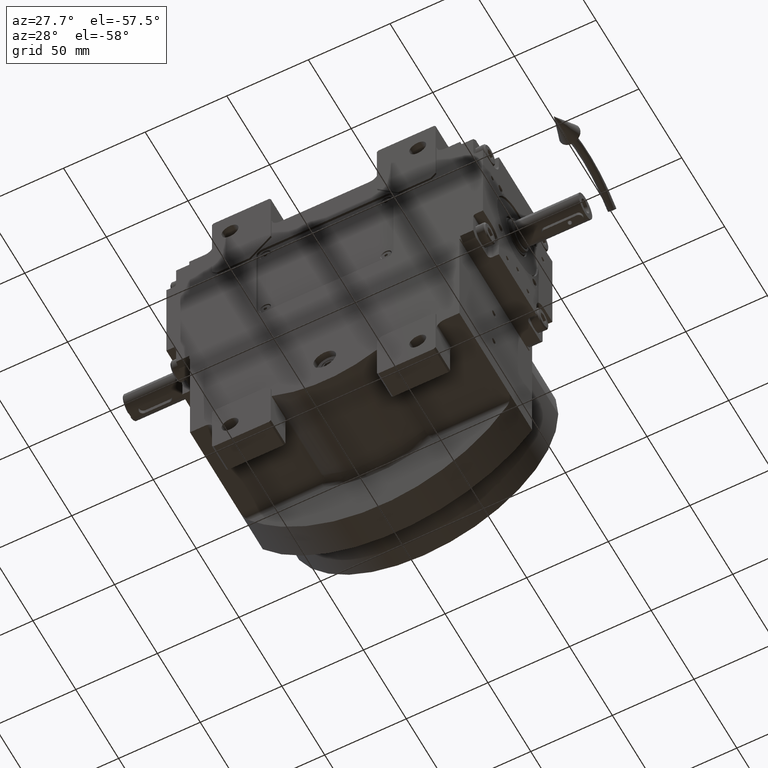
[diagram: clean part render]
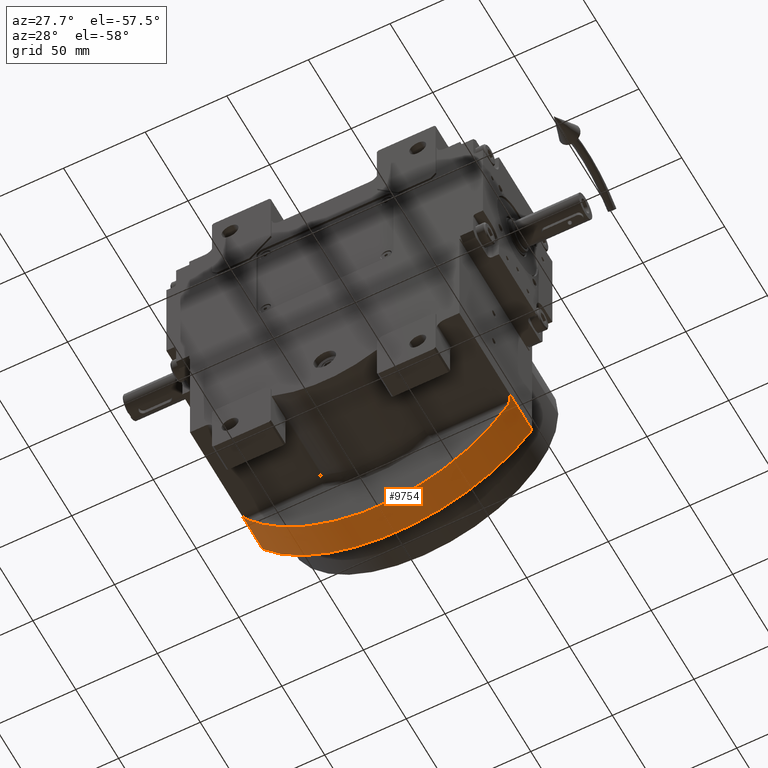
[diagram: same view with one face highlighted and labeled with its STEP entity id]
A machine part, auxiliary view. The second image highlights one B-rep face of the part: STEP entity #9754.
In plain terms, the highlighted cylindrical surface (partial cylindrical patch) has radius 101.323 mm, axis along (0, -1, 0).
Its self-contained STEP definition (entity closure, byte-faithful):
#421 = CARTESIAN_POINT ( 'NONE',  ( -80.71124185557013675, 21.21846151542565195, -60.93204789127204180 ) ) ;
#755 = CARTESIAN_POINT ( 'NONE',  ( 81.07808203326490570, 20.88843606383877471, -60.44566448122529323 ) ) ;
#1072 = CARTESIAN_POINT ( 'NONE',  ( 79.48504137600836827, 21.85553085867646672, -62.51814280813015756 ) ) ;
#1402 = CARTESIAN_POINT ( 'NONE',  ( 82.39740260651255710, 18.11699453785075065, -58.64364359043779018 ) ) ;
#2033 = CARTESIAN_POINT ( 'NONE',  ( 81.68887476796761860, 20.08202592194644254, -59.62156687700097990 ) ) ;
#2562 =( BOUNDED_CURVE ( )  B_SPLINE_CURVE ( 3, ( #35764, #30263, #25406, #60341 ),
 .UNSPECIFIED., .F., .F. ) 
 B_SPLINE_CURVE_WITH_KNOTS ( ( 4, 4 ),
 ( 2.246693557745409908, 4.036491749434144793 ),
 .UNSPECIFIED. ) 
 CURVE ( )  GEOMETRIC_REPRESENTATION_ITEM ( )  RATIONAL_B_SPLINE_CURVE ( ( 1.000000000000000000, 0.7503983596967388481, 0.7503983596967388481, 1.000000000000000000 ) ) 
 REPRESENTATION_ITEM ( '' )  );
#3765 = CARTESIAN_POINT ( 'NONE',  ( 0.000000000000000000, 44.50000000000000000, 0.3235294117646390077 ) ) ;
#5605 = CARTESIAN_POINT ( 'NONE',  ( 81.41555652887343797, 20.48138983581629446, -59.99201618544422843 ) ) ;
#5926 = CARTESIAN_POINT ( 'NONE',  ( 82.47216222466504121, 17.61681362791584959, -58.53908532207057647 ) ) ;
#6163 = EDGE_CURVE ( 'NONE', #40391, #55740, #24011, .T. ) ;
#6249 = CARTESIAN_POINT ( 'NONE',  ( 82.36648109135089157, 18.28109137298823939, -58.68684616786029551 ) ) ;
#6580 = CARTESIAN_POINT ( 'NONE',  ( 82.21217926006283960, 18.88176157855128423, -58.90159697903771274 ) ) ;
#6680 = VERTEX_POINT ( 'NONE', #54630 ) ;
#6733 = AXIS2_PLACEMENT_3D ( 'NONE', #3765, #48072, #56821 ) ;
#8053 = DIRECTION ( 'NONE',  ( 0.000000000000000000, -1.000000000000000000, 0.000000000000000000 ) ) ;
#8224 = CARTESIAN_POINT ( 'NONE',  ( -79.95003047960310028, 21.66726030743307874, -61.92194395876539659 ) ) ;
#9103 = ORIENTED_EDGE ( 'NONE', *, *, #32382, .T. ) ;
#9754 = ADVANCED_FACE ( 'NONE', ( #52673 ), #18054, .T. ) ;
#10771 = CARTESIAN_POINT ( 'NONE',  ( -82.15202258272368852, 19.06696433432636084, -58.98501332906405281 ) ) ;
#11104 = CARTESIAN_POINT ( 'NONE',  ( 81.55165246565790937, 20.29212583726973662, -59.80794136754331447 ) ) ;
#11943 = DIRECTION ( 'NONE',  ( 1.000000000000000000, 0.000000000000000000, 0.000000000000000000 ) ) ;
#14010 = CARTESIAN_POINT ( 'NONE',  ( -79.04714209825419857, 21.89931762037159757, -63.06422128626171286 ) ) ;
#14894 = CARTESIAN_POINT ( 'NONE',  ( -82.50000000000000000, 44.50000000000000000, -58.50000000000000000 ) ) ;
#15589 = CARTESIAN_POINT ( 'NONE',  ( -80.51481584605495812, 21.36195474809392891, -61.19021373771372652 ) ) ;
#15604 = CARTESIAN_POINT ( 'NONE',  ( 80.40883032657372098, 21.42125769504145794, -61.32774323446309239 ) ) ;
#16250 = CARTESIAN_POINT ( 'NONE',  ( 81.42711121235259952, 20.46597128035962854, -59.97641659382209411 ) ) ;
#18054 = CYLINDRICAL_SURFACE ( 'NONE', #21050, 101.3235294117646106 ) ;
#19617 = EDGE_CURVE ( 'NONE', #6680, #47337, #2562, .T. ) ;
#19836 = CARTESIAN_POINT ( 'NONE',  ( -79.04714209825419857, 21.89931762037159757, -63.06422128626171286 ) ) ;
#20133 = CARTESIAN_POINT ( 'NONE',  ( -82.39684885677273485, 18.29445221631914009, -58.64535851625800689 ) ) ;
#20450 = CARTESIAN_POINT ( 'NONE',  ( -82.17668361585674575, 18.99343862321323329, -58.95083879551732053 ) ) ;
#20453 = VECTOR ( 'NONE', #63127, 1000.000000000000000 ) ;
#21050 = AXIS2_PLACEMENT_3D ( 'NONE', #52356, #8053, #11943 ) ;
#21544 = CARTESIAN_POINT ( 'NONE',  ( 82.50000000000000000, 44.50000000000000000, -58.50000000000000000 ) ) ;
#21756 = CARTESIAN_POINT ( 'NONE',  ( 81.44827145435971261, 20.43735929856577727, -59.94783199448234967 ) ) ;
#24011 = LINE ( 'NONE', #43109, #32549 ) ;
#24352 = CARTESIAN_POINT ( 'NONE',  ( -82.49601985882750910, 17.62754433642036389, -58.50558214806272872 ) ) ;
#25329 = CARTESIAN_POINT ( 'NONE',  ( 81.24827234366316020, 20.70210223939763949, -60.21774392360881478 ) ) ;
#25406 = CARTESIAN_POINT ( 'NONE',  ( -35.11341279681530381, 26.69257427412653882, -117.8513955392394621 ) ) ;
#25633 = CARTESIAN_POINT ( 'NONE',  ( -80.27860717920268030, 21.49925890274865381, -61.49721705929056270 ) ) ;
#25651 = CARTESIAN_POINT ( 'NONE',  ( 82.28104955507662055, 18.64340514809044080, -58.80589567971785669 ) ) ;
#25755 = CARTESIAN_POINT ( 'NONE',  ( -82.50000000000000000, 44.50000000000000000, -58.50000000000000000 ) ) ;
#26298 = CARTESIAN_POINT ( 'NONE',  ( 80.80307844551603580, 21.13584355563558859, -60.81028530005812627 ) ) ;
#26617 = CARTESIAN_POINT ( 'NONE',  ( 82.31103723514804926, 18.52329142343325330, -58.76413230345031025 ) ) ;
#29465 = EDGE_CURVE ( 'NONE', #55740, #47998, #43887, .T. ) ;
#30186 = CARTESIAN_POINT ( 'NONE',  ( 82.10664358165148258, 19.21751729846226908, -59.04803310326353483 ) ) ;
#30263 = CARTESIAN_POINT ( 'NONE',  ( 35.11341279681546723, 26.69257427412652461, -117.8513955392394053 ) ) ;
#30491 = CARTESIAN_POINT ( 'NONE',  ( -82.18817833712013510, 18.95810624168983338, -58.93489948096387110 ) ) ;
#30591 = CARTESIAN_POINT ( 'NONE',  ( 82.50000025238179546, 16.91834884610074852, -58.49999999999619860 ) ) ;
#30819 = CARTESIAN_POINT ( 'NONE',  ( 80.48570218483004624, 21.37244370281862516, -61.22743844595007801 ) ) ;
#31462 = CARTESIAN_POINT ( 'NONE',  ( 82.24764895165553469, 18.76203942189971130, -58.85232920322380323 ) ) ;
#32382 = EDGE_CURVE ( 'NONE', #40391, #6680, #35999, .T. ) ;
#32549 = VECTOR ( 'NONE', #43747, 1000.000000000000000 ) ;
#32788 = CARTESIAN_POINT ( 'NONE',  ( -79.58728390821065091, 21.80910175760159930, -62.38629793861768746 ) ) ;
#34689 = CARTESIAN_POINT ( 'NONE',  ( -81.26507269813426149, 20.67153175727413839, -60.19468085035670413 ) ) ;
#35019 = CARTESIAN_POINT ( 'NONE',  ( -81.72912275488519640, 20.02336032153224465, -59.56685795275570428 ) ) ;
#35350 = CARTESIAN_POINT ( 'NONE',  ( -80.25465571364438233, 21.51277101549150217, -61.52830606318158146 ) ) ;
#35764 = CARTESIAN_POINT ( 'NONE',  ( 79.04714209825419857, 21.89931762037159757, -63.06422128626171286 ) ) ;
#35999 = B_SPLINE_CURVE_WITH_KNOTS ( 'NONE', 3,
 ( #49931, #55411, #5926, #1402, #6249, #26617, #25651, #31462, #36327, #6580, #30186, #59611, #45056, #2033, #11104, #50563, #21756, #16250, #5605, #25329, #755, #26298, #59926, #30819, #15604, #45374, #46011, #55726, #1072, #60900 ),
 .UNSPECIFIED., .F., .F.,
 ( 4, 2, 2, 1, 2, 2, 2, 1, 1, 1, 2, 2, 2, 1, 1, 2, 2, 4 ),
 ( 0.000000000000000000, 0.1250000000000039413, 0.1875000000000050515, 0.2187500000000046907, 0.2343750000000050793, 0.2500000000000054401, 0.3750000000000134337, 0.4375000000000182632, 0.4687500000000195399, 0.4843750000000202061, 0.4921875000000190958, 0.5000000000000179856, 0.6250000000000182077, 0.6875000000000158762, 0.7187500000000133227, 0.7343750000000105471, 0.7500000000000076605, 1.000000000000000000 ),
 .UNSPECIFIED. ) ;
#36327 = CARTESIAN_POINT ( 'NONE',  ( 82.22462164581631328, 18.84080017091743642, -58.88432138606643917 ) ) ;
#38905 = CARTESIAN_POINT ( 'NONE',  ( -79.26602375749489227, 21.87743103698923264, -62.79126682060910980 ) ) ;
#39469 = ORIENTED_EDGE ( 'NONE', *, *, #41221, .F. ) ;
#39490 = LINE ( 'NONE', #14894, #20453 ) ;
#39515 = ORIENTED_EDGE ( 'NONE', *, *, #6163, .F. ) ;
#39656 = ORIENTED_EDGE ( 'NONE', *, *, #19617, .T. ) ;
#39863 = CARTESIAN_POINT ( 'NONE',  ( -81.36607944202090437, 20.54591119842016056, -60.05874453835777871 ) ) ;
#40391 = VERTEX_POINT ( 'NONE', #30591 ) ;
#40512 = CARTESIAN_POINT ( 'NONE',  ( -82.50000025268040815, 16.91834885168089997, -58.49999999999780442 ) ) ;
#41221 = EDGE_CURVE ( 'NONE', #47998, #60360, #39490, .T. ) ;
#42328 = B_SPLINE_CURVE_WITH_KNOTS ( 'NONE', 3,
 ( #14010, #38905, #32788, #8224, #47667, #57684, #35350, #25633, #15589, #421, #55078, #48934, #34689, #58961, #39863, #50224, #55396, #44397, #35019, #54741, #60250, #59278, #10771, #20450, #30491, #20133, #24352, #40512 ),
 .UNSPECIFIED., .F., .F.,
 ( 4, 1, 1, 1, 2, 2, 2, 1, 1, 1, 2, 2, 2, 1, 1, 2, 2, 4 ),
 ( 0.000000000000000000, 0.1249999999999864830, 0.1874999999999781009, 0.2187499999999750200, 0.2343749999999729661, 0.2499999999999709122, 0.3749999999999693578, 0.4374999999999674705, 0.4687499999999676925, 0.4843749999999690248, 0.4921874999999693578, 0.4999999999999696909, 0.6249999999999751310, 0.6874999999999793499, 0.7187499999999809042, 0.7343749999999814593, 0.7499999999999819034, 1.000000000000000000 ),
 .UNSPECIFIED. ) ;
#43109 = CARTESIAN_POINT ( 'NONE',  ( 82.50000000000000000, 16.91835670641390266, -58.49999999999130296 ) ) ;
#43747 = DIRECTION ( 'NONE',  ( 0.000000000000000000, 1.000000000000000000, -3.142895179957984790E-13 ) ) ;
#43887 = CIRCLE ( 'NONE', #6733, 101.3235294117645822 ) ;
#44397 = CARTESIAN_POINT ( 'NONE',  ( -81.57741936295431628, 20.26788147318732669, -59.77360383890905382 ) ) ;
#45056 = CARTESIAN_POINT ( 'NONE',  ( 81.79538902022255797, 19.89184377910962453, -59.47600692098502861 ) ) ;
#45374 = CARTESIAN_POINT ( 'NONE',  ( 80.35715927420012861, 21.45313174725534822, -61.39507691378408794 ) ) ;
#45411 = EDGE_LOOP ( 'NONE', ( #60753, #39515, #9103, #39656, #61156, #39469 ) ) ;
#46011 = CARTESIAN_POINT ( 'NONE',  ( 80.32990774113041255, 21.46943477755629104, -61.43054108537118196 ) ) ;
#47337 = VERTEX_POINT ( 'NONE', #19836 ) ;
#47400 = CARTESIAN_POINT ( 'NONE',  ( -82.50000025268040815, 16.91834885168089997, -58.49999999999780442 ) ) ;
#47667 = CARTESIAN_POINT ( 'NONE',  ( -80.12842679020312175, 21.58080859296140730, -61.69183025208548088 ) ) ;
#47998 = VERTEX_POINT ( 'NONE', #25755 ) ;
#48072 = DIRECTION ( 'NONE',  ( 0.000000000000000000, 1.000000000000000000, 0.000000000000000000 ) ) ;
#48934 = CARTESIAN_POINT ( 'NONE',  ( -81.11883898710647145, 20.83930836702879219, -60.39077376549800391 ) ) ;
#49931 = CARTESIAN_POINT ( 'NONE',  ( 82.50000025238179546, 16.91834884610074852, -58.49999999999619860 ) ) ;
#50224 = CARTESIAN_POINT ( 'NONE',  ( -81.38597234681162718, 20.52026771325004262, -60.03192930007764261 ) ) ;
#50563 = CARTESIAN_POINT ( 'NONE',  ( 81.47977728701506805, 20.39423098210145824, -59.90524830952410440 ) ) ;
#52356 = CARTESIAN_POINT ( 'NONE',  ( -5.155723556140090415E-15, -40.50000000000000000, 0.3235294117646684842 ) ) ;
#52673 = FACE_OUTER_BOUND ( 'NONE', #45411, .T. ) ;
#54630 = CARTESIAN_POINT ( 'NONE',  ( 79.04714209825419857, 21.89931762037159757, -63.06422128626171286 ) ) ;
#54741 = CARTESIAN_POINT ( 'NONE',  ( -81.92755116913107827, 19.62953403434189070, -59.29481147433178734 ) ) ;
#55078 = CARTESIAN_POINT ( 'NONE',  ( -80.98624644766000813, 20.97105402362710080, -60.56742782993570273 ) ) ;
#55396 = CARTESIAN_POINT ( 'NONE',  ( -81.39498484016964142, 20.50852863369454937, -60.01977494073535979 ) ) ;
#55411 = CARTESIAN_POINT ( 'NONE',  ( 82.49801068936248782, 17.27283914859599534, -58.50279000820314224 ) ) ;
#55726 = CARTESIAN_POINT ( 'NONE',  ( 79.90397011453018195, 21.71709261374167710, -61.98413747915883931 ) ) ;
#55740 = VERTEX_POINT ( 'NONE', #21544 ) ;
#56821 = DIRECTION ( 'NONE',  ( 0.8142235123367200789, 0.000000000000000000, -0.5805515239477501144 ) ) ;
#57684 = CARTESIAN_POINT ( 'NONE',  ( -80.20424840609429395, 21.54042978903339645, -61.59365602934637707 ) ) ;
#58961 = CARTESIAN_POINT ( 'NONE',  ( -81.33609102444246730, 20.58412511646597665, -60.09914755126264652 ) ) ;
#59278 = CARTESIAN_POINT ( 'NONE',  ( -82.11413870244251711, 19.17640775850521706, -59.03747797673931075 ) ) ;
#59611 = CARTESIAN_POINT ( 'NONE',  ( 81.99381687280965991, 19.49801749192775802, -59.20396003289062037 ) ) ;
#59926 = CARTESIAN_POINT ( 'NONE',  ( 80.66064590096455333, 21.25152399031778572, -60.99827955324605000 ) ) ;
#60250 = CARTESIAN_POINT ( 'NONE',  ( -82.01948044624195688, 19.42585975081978944, -59.16830358708783422 ) ) ;
#60341 = CARTESIAN_POINT ( 'NONE',  ( -79.04714209825419857, 21.89931762037159757, -63.06422128626171286 ) ) ;
#60360 = VERTEX_POINT ( 'NONE', #47400 ) ;
#60753 = ORIENTED_EDGE ( 'NONE', *, *, #29465, .F. ) ;
#60900 = CARTESIAN_POINT ( 'NONE',  ( 79.04714209825419857, 21.89931762037159757, -63.06422128626171286 ) ) ;
#61156 = ORIENTED_EDGE ( 'NONE', *, *, #63565, .T. ) ;
#63127 = DIRECTION ( 'NONE',  ( 0.000000000000000000, -1.000000000000000000, 3.148047468836620162E-13 ) ) ;
#63565 = EDGE_CURVE ( 'NONE', #47337, #60360, #42328, .T. ) ;